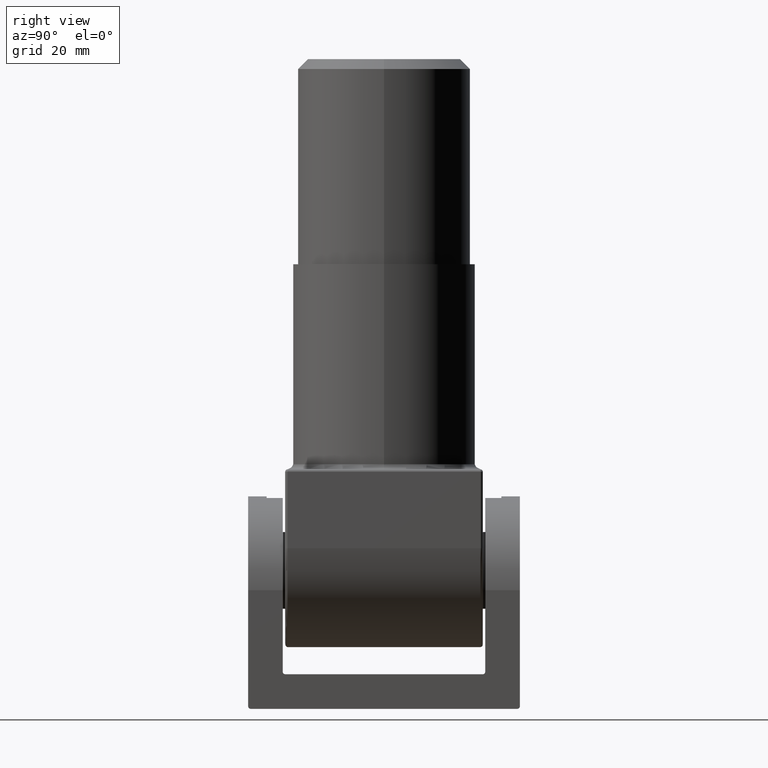
[diagram: clean part render]
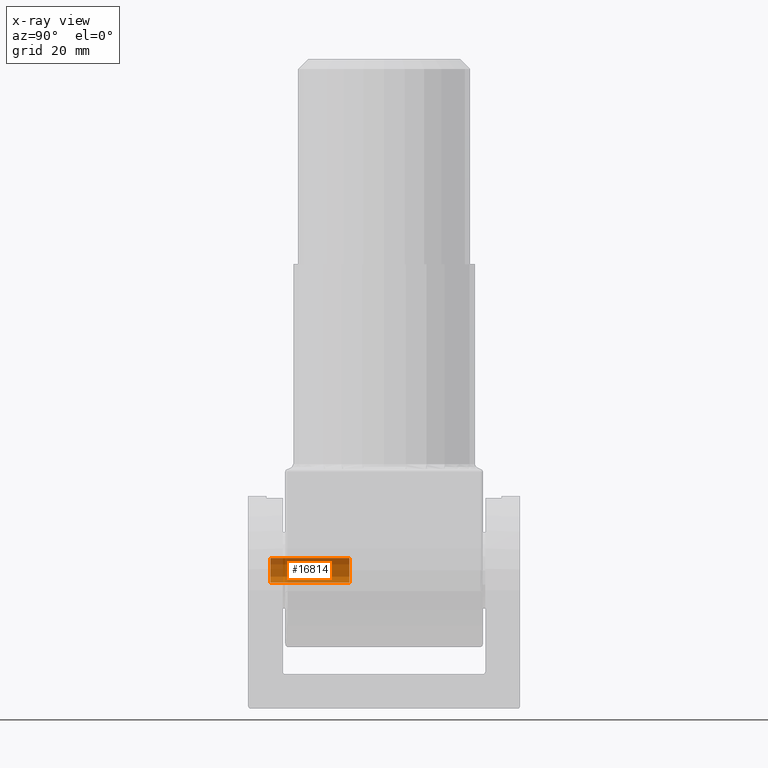
[diagram: x-ray — body ghosted, one internal face saturated and labeled with its STEP entity id]
A machine part, right view, then the same camera in x-ray: the body is ghosted and one INTERNAL B-rep face — a face not visible from any outside direction — is saturated and labeled: STEP entity #16814.
In plain terms, the highlighted cylindrical surface (edge-blend (fillet) strip) has radius 2.5 mm, axis along (-0, -1, -0).
Its self-contained STEP definition (entity closure, byte-faithful):
#1493 = CARTESIAN_POINT ( 'NONE',  ( 3.061616997868373773E-16, -23.50000000000000000, -18.00000000000001066 ) ) ;
#1597 = DIRECTION ( 'NONE',  ( 0.000000000000000000, 0.000000000000000000, 1.000000000000000000 ) ) ;
#2701 = CARTESIAN_POINT ( 'NONE',  ( 0.000000000000000000, -22.99999999999996447, -22.99999999999999289 ) ) ;
#2795 = EDGE_CURVE ( 'NONE', #7092, #22818, #9112, .T. ) ;
#3312 = VECTOR ( 'NONE', #6101, 1000.000000000000000 ) ;
#3468 = CARTESIAN_POINT ( 'NONE',  ( 0.000000000000000000, -23.50000000000000000, -20.50000000000000000 ) ) ;
#3771 = CARTESIAN_POINT ( 'NONE',  ( 3.061616997868377718E-16, -6.999999999999999112, -18.00000000000000711 ) ) ;
#3784 = CIRCLE ( 'NONE', #10392, 2.499999999999995115 ) ;
#3836 = DIRECTION ( 'NONE',  ( 0.000000000000000000, 0.000000000000000000, -1.000000000000000000 ) ) ;
#3939 = AXIS2_PLACEMENT_3D ( 'NONE', #22754, #15844, #1597 ) ;
#4037 = LINE ( 'NONE', #1493, #10408 ) ;
#4133 = DIRECTION ( 'NONE',  ( -0.000000000000000000, -1.000000000000000000, -0.000000000000000000 ) ) ;
#4923 = ORIENTED_EDGE ( 'NONE', *, *, #15834, .T. ) ;
#6101 = DIRECTION ( 'NONE',  ( -0.000000000000000000, -1.000000000000000000, -0.000000000000000000 ) ) ;
#7092 = VERTEX_POINT ( 'NONE', #14596 ) ;
#7094 = DIRECTION ( 'NONE',  ( -0.000000000000000000, -1.000000000000000000, -0.000000000000000000 ) ) ;
#8283 = EDGE_CURVE ( 'NONE', #17016, #7092, #3784, .T. ) ;
#8360 = DIRECTION ( 'NONE',  ( -0.000000000000000000, -1.000000000000000000, -0.000000000000000000 ) ) ;
#9112 = LINE ( 'NONE', #15184, #3312 ) ;
#9144 = CYLINDRICAL_SURFACE ( 'NONE', #12997, 2.499999999999992006 ) ;
#10392 = AXIS2_PLACEMENT_3D ( 'NONE', #11188, #4133, #3836 ) ;
#10408 = VECTOR ( 'NONE', #8360, 1000.000000000000000 ) ;
#10454 = DIRECTION ( 'NONE',  ( 0.000000000000000000, 0.000000000000000000, -1.000000000000000000 ) ) ;
#11188 = CARTESIAN_POINT ( 'NONE',  ( 0.000000000000000000, -6.999999999999999112, -20.50000000000000000 ) ) ;
#12910 = VERTEX_POINT ( 'NONE', #21512 ) ;
#12997 = AXIS2_PLACEMENT_3D ( 'NONE', #3468, #7094, #10454 ) ;
#13204 = ORIENTED_EDGE ( 'NONE', *, *, #20775, .T. ) ;
#13880 = FACE_OUTER_BOUND ( 'NONE', #16394, .T. ) ;
#14099 = CIRCLE ( 'NONE', #3939, 2.499999999999992006 ) ;
#14596 = CARTESIAN_POINT ( 'NONE',  ( 0.000000000000000000, -6.999999999999999112, -22.99999999999999645 ) ) ;
#15184 = CARTESIAN_POINT ( 'NONE',  ( 0.000000000000000000, -23.50000000000000000, -22.99999999999999289 ) ) ;
#15834 = EDGE_CURVE ( 'NONE', #12910, #22818, #14099, .T. ) ;
#15844 = DIRECTION ( 'NONE',  ( 0.000000000000000000, -1.000000000000000000, 0.000000000000000000 ) ) ;
#16321 = ORIENTED_EDGE ( 'NONE', *, *, #2795, .F. ) ;
#16394 = EDGE_LOOP ( 'NONE', ( #22082, #13204, #4923, #16321 ) ) ;
#16814 = ADVANCED_FACE ( 'NONE', ( #13880 ), #9144, .F. ) ;
#17016 = VERTEX_POINT ( 'NONE', #3771 ) ;
#20775 = EDGE_CURVE ( 'NONE', #17016, #12910, #4037, .T. ) ;
#21512 = CARTESIAN_POINT ( 'NONE',  ( 3.061616997868375253E-16, -22.99999999999996447, -18.00000000000001066 ) ) ;
#22082 = ORIENTED_EDGE ( 'NONE', *, *, #8283, .F. ) ;
#22754 = CARTESIAN_POINT ( 'NONE',  ( 0.000000000000000000, -22.99999999999996447, -20.50000000000000000 ) ) ;
#22818 = VERTEX_POINT ( 'NONE', #2701 ) ;